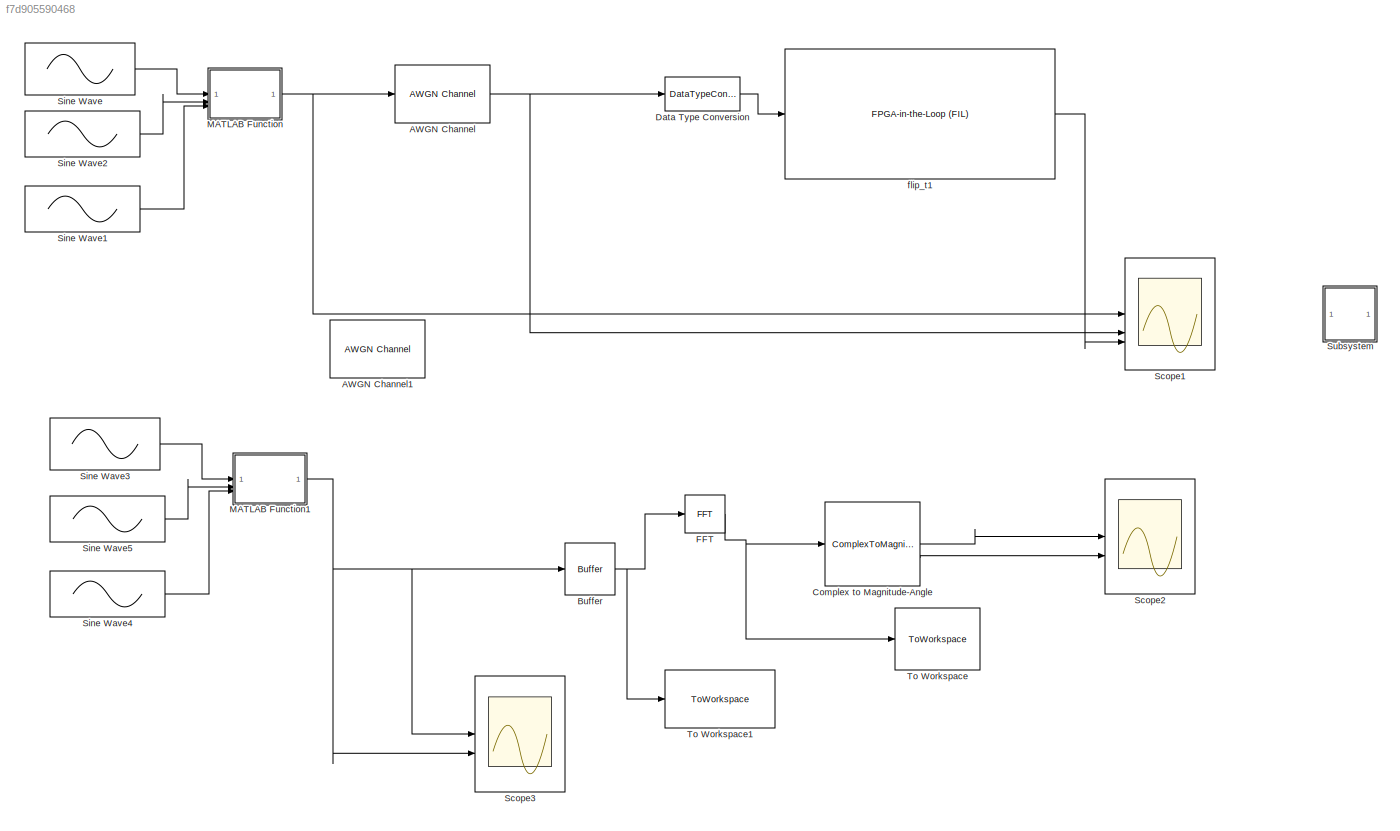
MODEL slx_f7d905590468
KIND model
CONFIG AbsTol = auto
CONFIG EnableMultiTasking = off
CONFIG FixedStep = auto
CONFIG MaxStep = auto
CONFIG MinStep = auto
CONFIG RelTol = 1e-3
CONFIG SampleTimeConstraint = Unconstrained
CONFIG SolverName = VariableStepAuto
CONFIG StartTime = 0.0
CONFIG StopTime = 2
BLOCK [Reference] AWGN Channel  REF=commchan3/AWGN
Channel
  SourceBlock = commchan3/AWGN\nChannel
  SourceType = AWGN Channel
  UserDataPersistent = on
BLOCK [Reference] AWGN Channel1  REF=commchan3/AWGN
Channel
  Commented = on
  SourceBlock = commchan3/AWGN\nChannel
  SourceType = AWGN Channel
  UserDataPersistent = on
BLOCK [Buffer] Buffer
  N = 1024
  OutputFrames = off
BLOCK [ComplexToMagnitudeAngle] Complex to Magnitude-Angle
BLOCK [DataTypeConversion] Data Type Conversion
  OutDataTypeStr = fixdt(1,8,0)
  OutMax = [127]
  OutMin = [-128]
  RndMeth = Nearest
  SaturateOnIntegerOverflow = off
BLOCK [Reference] FFT  REF=dspxfrm3/FFT
  SourceBlock = dspxfrm3/FFT
  SourceType = FFT
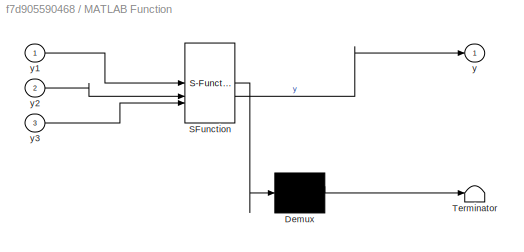
BLOCK [SubSystem] MATLAB Function
  ErrorFcn = Stateflow.Translate.translate
  LibrarySourceBlock = simulink/User-Defined\nFunctions/MATLAB Function
  PermitHierarchicalResolution = ExplicitOnly
  SFBlockType = MATLAB Function
  TreatAsAtomicUnit = on
BLOCK [Demux] MATLAB Function/ Demux 
  Outputs = 1
BLOCK [S-Function] MATLAB Function/ SFunction 
  EnableBusSupport = on
  FunctionName = sf_sfun
  PortCounts = [3 2]
  SFcnIsStateOwnerBlock = off
  SFunctionDeploymentMode = off
  Tag = Stateflow S-Function 2
BLOCK [Terminator] MATLAB Function/ Terminator 
BLOCK [Outport] MATLAB Function/y
BLOCK [Inport] MATLAB Function/y1
BLOCK [Inport] MATLAB Function/y2
  Port = 2
BLOCK [Inport] MATLAB Function/y3
  Port = 3
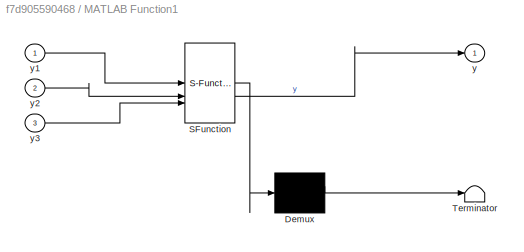
BLOCK [SubSystem] MATLAB Function1
  ErrorFcn = Stateflow.Translate.translate
  LibrarySourceBlock = simulink/User-Defined\nFunctions/MATLAB Function
  PermitHierarchicalResolution = ExplicitOnly
  SFBlockType = MATLAB Function
  TreatAsAtomicUnit = on
BLOCK [Demux] MATLAB Function1/ Demux 
  Outputs = 1
BLOCK [S-Function] MATLAB Function1/ SFunction 
  EnableBusSupport = on
  FunctionName = sf_sfun
  PortCounts = [3 2]
  SFcnIsStateOwnerBlock = off
  SFunctionDeploymentMode = off
  Tag = Stateflow S-Function 1
BLOCK [Terminator] MATLAB Function1/ Terminator 
BLOCK [Outport] MATLAB Function1/y
BLOCK [Inport] MATLAB Function1/y1
BLOCK [Inport] MATLAB Function1/y2
  Port = 2
BLOCK [Inport] MATLAB Function1/y3
  Port = 3
BLOCK [Scope] Scope1
  Floating = off
  NumInputPorts = 3
  ScopeSpecificationString = Simulink.scopes.TimeScopeBlockCfg('CurrentConfiguration', extmgr.ConfigurationSet(extmgr.Configuration('Core','General UI',true),extmgr.Configuration('Core','Source UI',true),extmgr.Configuration('Sources','WiredSimulink',true,'DataLoggingVariableName','ScopeData1'),extmgr.Configuration('Visuals','Time Domain',true,'SerializedDisplays',{struct('MinYLimReal','-14.83328','MaxYLimReal','14.02187','YL...<+2864ch>
BLOCK [Scope] Scope2
  Floating = off
  NumInputPorts = 2
  ScopeSpecificationString = Simulink.scopes.TimeScopeBlockCfg('CurrentConfiguration', extmgr.ConfigurationSet(extmgr.Configuration('Core','General UI',true),extmgr.Configuration('Core','Source UI',true),extmgr.Configuration('Sources','WiredSimulink',true,'DataLoggingVariableName','ScopeData1'),extmgr.Configuration('Visuals','Time Domain',true,'SerializedDisplays',{struct('MinYLimReal','-6.24899','MaxYLimReal','6.249','YLabel...<+2819ch>
BLOCK [Scope] Scope3
  Floating = off
  NumInputPorts = 2
  ScopeSpecificationString = Simulink.scopes.TimeScopeBlockCfg('CurrentConfiguration', extmgr.ConfigurationSet(extmgr.Configuration('Core','General UI',true),extmgr.Configuration('Core','Source UI',true),extmgr.Configuration('Sources','WiredSimulink',true,'DataLoggingVariableName','ScopeData2'),extmgr.Configuration('Visuals','Time Domain',true,'SerializedDisplays',{struct('MinYLimReal','-475.56033','MaxYLimReal','1316.57368',...<+2901ch>
BLOCK [Sin] Sine Wave
  Amplitude = 5
  SampleTime = 1
  Samples = 102
  SineType = Sample based
BLOCK [Sin] Sine Wave1
  Amplitude = 5
  Frequency = 5
  SampleTime = 1
  Samples = 410
  SineType = Sample based
BLOCK [Sin] Sine Wave2
  Amplitude = 5
  Frequency = 5
  SampleTime = 1
  Samples = 205
  SineType = Sample based
BLOCK [Sin] Sine Wave3
  Amplitude = 100
  Frequency = 628
  SampleTime = 0.001
  Samples = 102
BLOCK [Sin] Sine Wave4
  Amplitude = 100
  Frequency = 1885
  SampleTime = 0.001
  Samples = 410
BLOCK [Sin] Sine Wave5
  Amplitude = 100
  Frequency = 1257
  SampleTime = 0.001
  Samples = 205
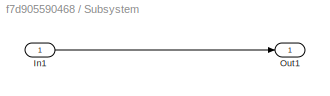
BLOCK [SubSystem] Subsystem
BLOCK [Inport] Subsystem/In1
BLOCK [Outport] Subsystem/Out1
BLOCK [ToWorkspace] To Workspace
  MaxDataPoints = inf
  SampleTime = -1
  Save2DSignal = 2-D array (concatenate along first dimension)
  VariableName = fft_data
BLOCK [ToWorkspace] To Workspace1
  MaxDataPoints = inf
  SampleTime = -1
  Save2DSignal = 2-D array (concatenate along first dimension)
  VariableName = signal
BLOCK [Reference] flip_t1  REF=fillib/FPGA-in-the-Loop (FIL)
  SourceBlock = fillib/FPGA-in-the-Loop (FIL)
  SourceType = FPGA-in-the-Loop (FIL)
  UserDataPersistent = on
NET AWGN Channel:1 -> Data Type Conversion:1, Scope1:2
NET Buffer:1 -> FFT:1, To Workspace1:1
LINE Complex to Magnitude-Angle:1 -> Scope2:1
LINE Complex to Magnitude-Angle:2 -> Scope2:2
LINE Data Type Conversion:1 -> flip_t1:1
NET FFT:1 -> Complex to Magnitude-Angle:1, To Workspace:1
NET MATLAB Function1:1 -> Buffer:1, Scope3:1, Scope3:2
NET MATLAB Function:1 -> AWGN Channel:1, Scope1:1
LINE Sine Wave1:1 -> MATLAB Function:3
LINE Sine Wave2:1 -> MATLAB Function:2
LINE Sine Wave3:1 -> MATLAB Function1:1
LINE Sine Wave4:1 -> MATLAB Function1:3
LINE Sine Wave5:1 -> MATLAB Function1:2
LINE Sine Wave:1 -> MATLAB Function:1
LINE Subsystem/In1:1 -> Subsystem/Out1:1
LINE flip_t1:1 -> Scope1:3
note: NET lines group one-source signal fan-out (src -> all destinations, sorted); 1:1 wires keep LINE
CHART MATLAB Function states=1 transitions=1
  STATE_LABEL 'eML_blk_kernel()'
  STATE_LABEL 'SCRIPT:\nfunction y = fcn1(y1, y2, y3)\n\ny = y1 + y2 + y3;\n'
CHART MATLAB Function1 states=1 transitions=1
  STATE_LABEL 'eML_blk_kernel()'
  STATE_LABEL "SCRIPT:\nfunction y = fcn1(y1, y2, y3)\n\ny = y1 + y2 + y3;\n\ny = awgn(y, 10, 'measured');\n"
CHART  states=0 transitions=0
CHART  states=0 transitions=0
